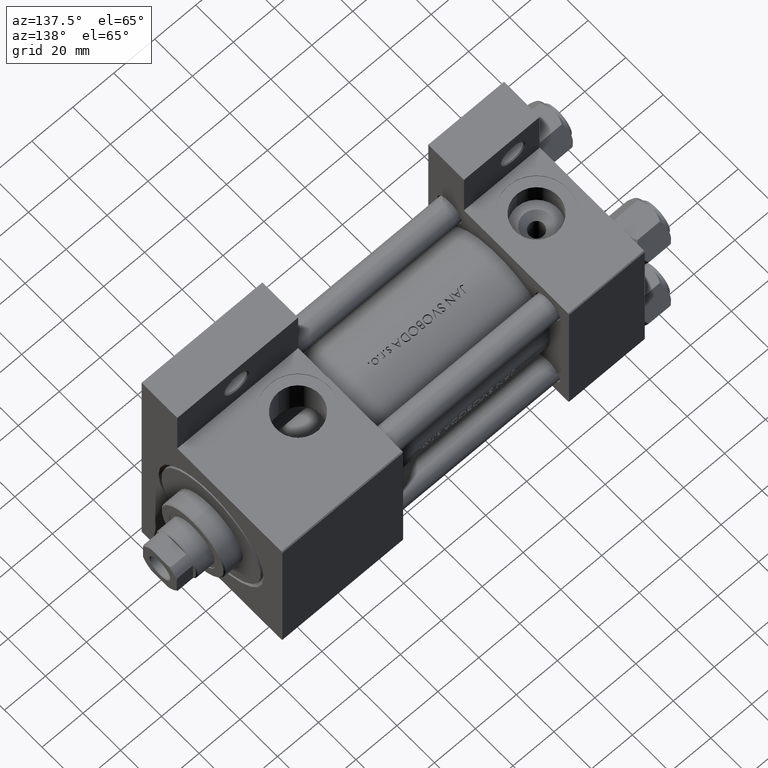
[diagram: clean part render]
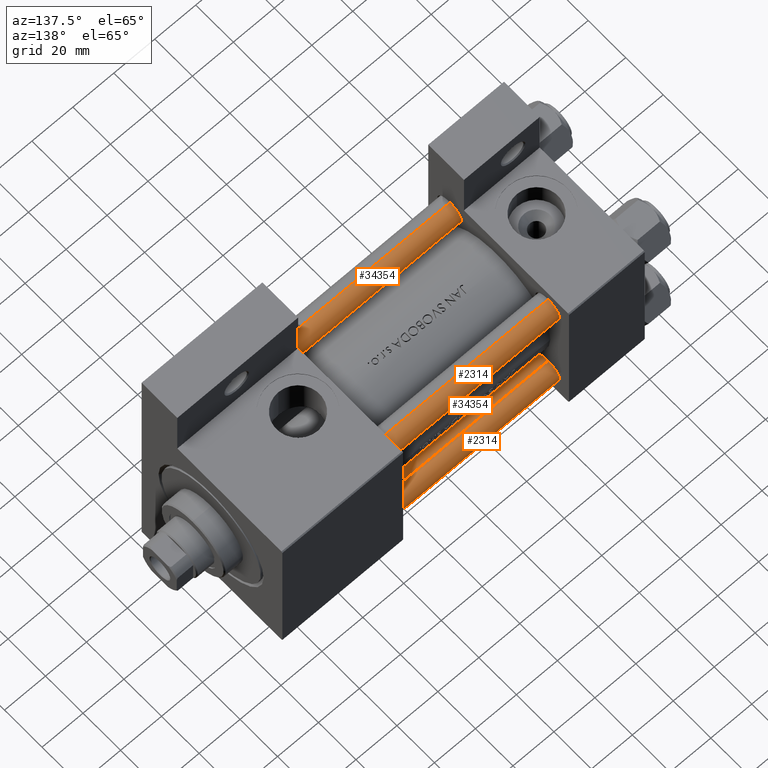
[diagram: same view with one multi-face feature highlighted, each face labeled with its STEP entity id]
A machine part, auxiliary view. The highlighted faces form ONE feature: a constant-radius fillet chain: 4 tangent blend faces with common blend radius 6 mm. The faces share edges in the B-rep.
Their STEP definitions:
[1] entity #2314 (Cylinder):
#359 = ORIENTED_EDGE ( 'NONE', *, *, #12044, .T. ) ;
#415 = DIRECTION ( 'NONE',  ( -0.000000000000000000, -0.000000000000000000, -1.000000000000000000 ) ) ;
#1256 = AXIS2_PLACEMENT_3D ( 'NONE', #48250, #40768, #23266 ) ;
#2268 = DIRECTION ( 'NONE',  ( -0.000000000000000000, -0.000000000000000000, -1.000000000000000000 ) ) ;
#2314 = ADVANCED_FACE ( 'NONE', ( #2680 ), #17866, .T. ) ;
#2680 = FACE_OUTER_BOUND ( 'NONE', #6323, .T. ) ;
#4092 = VERTEX_POINT ( 'NONE', #20098 ) ;
#5217 = CARTESIAN_POINT ( 'NONE',  ( -6.000000000000000888, 0.000000000000000000, 0.5000000000000004441 ) ) ;
#6323 = EDGE_LOOP ( 'NONE', ( #359, #31603, #44761, #8706 ) ) ;
#7171 = CARTESIAN_POINT ( 'NONE',  ( -6.000000000000000888, 0.000000000000000000, 147.0000000000000000 ) ) ;
#7822 = AXIS2_PLACEMENT_3D ( 'NONE', #21263, #41822, #29661 ) ;
#8422 = EDGE_CURVE ( 'NONE', #28622, #28889, #12631, .T. ) ;
#8706 = ORIENTED_EDGE ( 'NONE', *, *, #15880, .F. ) ;
#9428 = AXIS2_PLACEMENT_3D ( 'NONE', #45759, #24858, #32075 ) ;
#12044 = EDGE_CURVE ( 'NONE', #4092, #16332, #30894, .T. ) ;
#12631 = CIRCLE ( 'NONE', #7822, 6.000000000000000888 ) ;
#15880 = EDGE_CURVE ( 'NONE', #4092, #28889, #19090, .T. ) ;
#16332 = VERTEX_POINT ( 'NONE', #22180 ) ;
#17866 = CYLINDRICAL_SURFACE ( 'NONE', #1256, 6.000000000000000888 ) ;
#18197 = LINE ( 'NONE', #36133, #19958 ) ;
#19090 = LINE ( 'NONE', #7171, #24689 ) ;
#19958 = VECTOR ( 'NONE', #2268, 1000.000000000000000 ) ;
#20098 = CARTESIAN_POINT ( 'NONE',  ( -6.000000000000000888, 0.000000000000000000, 146.5000000000000000 ) ) ;
#21263 = CARTESIAN_POINT ( 'NONE',  ( 0.000000000000000000, 0.000000000000000000, 0.5000000000000004441 ) ) ;
#22180 = CARTESIAN_POINT ( 'NONE',  ( 6.000000000000000888, 7.347880794884120722E-16, 146.5000000000000000 ) ) ;
#23266 = DIRECTION ( 'NONE',  ( -1.000000000000000000, 0.000000000000000000, 0.000000000000000000 ) ) ;
#23969 = CARTESIAN_POINT ( 'NONE',  ( 6.000000000000000888, 7.347880794884120722E-16, 0.5000000000000004441 ) ) ;
#24689 = VECTOR ( 'NONE', #415, 1000.000000000000000 ) ;
#24858 = DIRECTION ( 'NONE',  ( 0.000000000000000000, 0.000000000000000000, -1.000000000000000000 ) ) ;
#28622 = VERTEX_POINT ( 'NONE', #23969 ) ;
#28889 = VERTEX_POINT ( 'NONE', #5217 ) ;
#29661 = DIRECTION ( 'NONE',  ( 1.000000000000000000, 0.000000000000000000, 0.000000000000000000 ) ) ;
#30894 = CIRCLE ( 'NONE', #9428, 6.000000000000000888 ) ;
#31603 = ORIENTED_EDGE ( 'NONE', *, *, #41086, .T. ) ;
#32075 = DIRECTION ( 'NONE',  ( 1.000000000000000000, 0.000000000000000000, 0.000000000000000000 ) ) ;
#36133 = CARTESIAN_POINT ( 'NONE',  ( 6.000000000000000888, 7.347880794884120722E-16, 147.0000000000000000 ) ) ;
#40768 = DIRECTION ( 'NONE',  ( -0.000000000000000000, -0.000000000000000000, -1.000000000000000000 ) ) ;
#41086 = EDGE_CURVE ( 'NONE', #16332, #28622, #18197, .T. ) ;
#41822 = DIRECTION ( 'NONE',  ( -0.000000000000000000, -0.000000000000000000, 1.000000000000000000 ) ) ;
#44761 = ORIENTED_EDGE ( 'NONE', *, *, #8422, .T. ) ;
#45759 = CARTESIAN_POINT ( 'NONE',  ( 0.000000000000000000, 0.000000000000000000, 146.5000000000000000 ) ) ;
#48250 = CARTESIAN_POINT ( 'NONE',  ( 0.000000000000000000, 0.000000000000000000, 147.0000000000000000 ) ) ;
[2] entity #34354 (Cylinder):
#415 = DIRECTION ( 'NONE',  ( -0.000000000000000000, -0.000000000000000000, -1.000000000000000000 ) ) ;
#632 = EDGE_CURVE ( 'NONE', #16332, #4092, #13168, .T. ) ;
#1714 = DIRECTION ( 'NONE',  ( 1.000000000000000000, 0.000000000000000000, 0.000000000000000000 ) ) ;
#2268 = DIRECTION ( 'NONE',  ( -0.000000000000000000, -0.000000000000000000, -1.000000000000000000 ) ) ;
#4092 = VERTEX_POINT ( 'NONE', #20098 ) ;
#5217 = CARTESIAN_POINT ( 'NONE',  ( -6.000000000000000888, 0.000000000000000000, 0.5000000000000004441 ) ) ;
#7171 = CARTESIAN_POINT ( 'NONE',  ( -6.000000000000000888, 0.000000000000000000, 147.0000000000000000 ) ) ;
#7811 = DIRECTION ( 'NONE',  ( -1.000000000000000000, 0.000000000000000000, 0.000000000000000000 ) ) ;
#9179 = EDGE_LOOP ( 'NONE', ( #47995, #10002, #47557, #30301 ) ) ;
#10002 = ORIENTED_EDGE ( 'NONE', *, *, #632, .T. ) ;
#13168 = CIRCLE ( 'NONE', #31434, 6.000000000000000888 ) ;
#14382 = DIRECTION ( 'NONE',  ( 1.000000000000000000, 0.000000000000000000, 0.000000000000000000 ) ) ;
#15880 = EDGE_CURVE ( 'NONE', #4092, #28889, #19090, .T. ) ;
#16332 = VERTEX_POINT ( 'NONE', #22180 ) ;
#18197 = LINE ( 'NONE', #36133, #19958 ) ;
#18763 = CARTESIAN_POINT ( 'NONE',  ( 0.000000000000000000, 0.000000000000000000, 147.0000000000000000 ) ) ;
#19090 = LINE ( 'NONE', #7171, #24689 ) ;
#19958 = VECTOR ( 'NONE', #2268, 1000.000000000000000 ) ;
#20098 = CARTESIAN_POINT ( 'NONE',  ( -6.000000000000000888, 0.000000000000000000, 146.5000000000000000 ) ) ;
#20489 = AXIS2_PLACEMENT_3D ( 'NONE', #37027, #33044, #14382 ) ;
#20643 = DIRECTION ( 'NONE',  ( 0.000000000000000000, 0.000000000000000000, -1.000000000000000000 ) ) ;
#21135 = CARTESIAN_POINT ( 'NONE',  ( 0.000000000000000000, 0.000000000000000000, 146.5000000000000000 ) ) ;
#22180 = CARTESIAN_POINT ( 'NONE',  ( 6.000000000000000888, 7.347880794884120722E-16, 146.5000000000000000 ) ) ;
#23969 = CARTESIAN_POINT ( 'NONE',  ( 6.000000000000000888, 7.347880794884120722E-16, 0.5000000000000004441 ) ) ;
#24689 = VECTOR ( 'NONE', #415, 1000.000000000000000 ) ;
#26265 = CYLINDRICAL_SURFACE ( 'NONE', #29999, 6.000000000000000888 ) ;
#27002 = FACE_OUTER_BOUND ( 'NONE', #9179, .T. ) ;
#28622 = VERTEX_POINT ( 'NONE', #23969 ) ;
#28889 = VERTEX_POINT ( 'NONE', #5217 ) ;
#29999 = AXIS2_PLACEMENT_3D ( 'NONE', #18763, #33951, #7811 ) ;
#30301 = ORIENTED_EDGE ( 'NONE', *, *, #30968, .T. ) ;
#30968 = EDGE_CURVE ( 'NONE', #28889, #28622, #33090, .T. ) ;
#31434 = AXIS2_PLACEMENT_3D ( 'NONE', #21135, #20643, #1714 ) ;
#33044 = DIRECTION ( 'NONE',  ( -0.000000000000000000, -0.000000000000000000, 1.000000000000000000 ) ) ;
#33090 = CIRCLE ( 'NONE', #20489, 6.000000000000000888 ) ;
#33951 = DIRECTION ( 'NONE',  ( -0.000000000000000000, -0.000000000000000000, -1.000000000000000000 ) ) ;
#34354 = ADVANCED_FACE ( 'NONE', ( #27002 ), #26265, .T. ) ;
#36133 = CARTESIAN_POINT ( 'NONE',  ( 6.000000000000000888, 7.347880794884120722E-16, 147.0000000000000000 ) ) ;
#37027 = CARTESIAN_POINT ( 'NONE',  ( 0.000000000000000000, 0.000000000000000000, 0.5000000000000004441 ) ) ;
#41086 = EDGE_CURVE ( 'NONE', #16332, #28622, #18197, .T. ) ;
#47557 = ORIENTED_EDGE ( 'NONE', *, *, #15880, .T. ) ;
#47995 = ORIENTED_EDGE ( 'NONE', *, *, #41086, .F. ) ;
[3] entity #2314 (Cylinder):
#359 = ORIENTED_EDGE ( 'NONE', *, *, #12044, .T. ) ;
#415 = DIRECTION ( 'NONE',  ( -0.000000000000000000, -0.000000000000000000, -1.000000000000000000 ) ) ;
#1256 = AXIS2_PLACEMENT_3D ( 'NONE', #48250, #40768, #23266 ) ;
#2268 = DIRECTION ( 'NONE',  ( -0.000000000000000000, -0.000000000000000000, -1.000000000000000000 ) ) ;
#2314 = ADVANCED_FACE ( 'NONE', ( #2680 ), #17866, .T. ) ;
#2680 = FACE_OUTER_BOUND ( 'NONE', #6323, .T. ) ;
#4092 = VERTEX_POINT ( 'NONE', #20098 ) ;
#5217 = CARTESIAN_POINT ( 'NONE',  ( -6.000000000000000888, 0.000000000000000000, 0.5000000000000004441 ) ) ;
#6323 = EDGE_LOOP ( 'NONE', ( #359, #31603, #44761, #8706 ) ) ;
#7171 = CARTESIAN_POINT ( 'NONE',  ( -6.000000000000000888, 0.000000000000000000, 147.0000000000000000 ) ) ;
#7822 = AXIS2_PLACEMENT_3D ( 'NONE', #21263, #41822, #29661 ) ;
#8422 = EDGE_CURVE ( 'NONE', #28622, #28889, #12631, .T. ) ;
#8706 = ORIENTED_EDGE ( 'NONE', *, *, #15880, .F. ) ;
#9428 = AXIS2_PLACEMENT_3D ( 'NONE', #45759, #24858, #32075 ) ;
#12044 = EDGE_CURVE ( 'NONE', #4092, #16332, #30894, .T. ) ;
#12631 = CIRCLE ( 'NONE', #7822, 6.000000000000000888 ) ;
#15880 = EDGE_CURVE ( 'NONE', #4092, #28889, #19090, .T. ) ;
#16332 = VERTEX_POINT ( 'NONE', #22180 ) ;
#17866 = CYLINDRICAL_SURFACE ( 'NONE', #1256, 6.000000000000000888 ) ;
#18197 = LINE ( 'NONE', #36133, #19958 ) ;
#19090 = LINE ( 'NONE', #7171, #24689 ) ;
#19958 = VECTOR ( 'NONE', #2268, 1000.000000000000000 ) ;
#20098 = CARTESIAN_POINT ( 'NONE',  ( -6.000000000000000888, 0.000000000000000000, 146.5000000000000000 ) ) ;
#21263 = CARTESIAN_POINT ( 'NONE',  ( 0.000000000000000000, 0.000000000000000000, 0.5000000000000004441 ) ) ;
#22180 = CARTESIAN_POINT ( 'NONE',  ( 6.000000000000000888, 7.347880794884120722E-16, 146.5000000000000000 ) ) ;
#23266 = DIRECTION ( 'NONE',  ( -1.000000000000000000, 0.000000000000000000, 0.000000000000000000 ) ) ;
#23969 = CARTESIAN_POINT ( 'NONE',  ( 6.000000000000000888, 7.347880794884120722E-16, 0.5000000000000004441 ) ) ;
#24689 = VECTOR ( 'NONE', #415, 1000.000000000000000 ) ;
#24858 = DIRECTION ( 'NONE',  ( 0.000000000000000000, 0.000000000000000000, -1.000000000000000000 ) ) ;
#28622 = VERTEX_POINT ( 'NONE', #23969 ) ;
#28889 = VERTEX_POINT ( 'NONE', #5217 ) ;
#29661 = DIRECTION ( 'NONE',  ( 1.000000000000000000, 0.000000000000000000, 0.000000000000000000 ) ) ;
#30894 = CIRCLE ( 'NONE', #9428, 6.000000000000000888 ) ;
#31603 = ORIENTED_EDGE ( 'NONE', *, *, #41086, .T. ) ;
#32075 = DIRECTION ( 'NONE',  ( 1.000000000000000000, 0.000000000000000000, 0.000000000000000000 ) ) ;
#36133 = CARTESIAN_POINT ( 'NONE',  ( 6.000000000000000888, 7.347880794884120722E-16, 147.0000000000000000 ) ) ;
#40768 = DIRECTION ( 'NONE',  ( -0.000000000000000000, -0.000000000000000000, -1.000000000000000000 ) ) ;
#41086 = EDGE_CURVE ( 'NONE', #16332, #28622, #18197, .T. ) ;
#41822 = DIRECTION ( 'NONE',  ( -0.000000000000000000, -0.000000000000000000, 1.000000000000000000 ) ) ;
#44761 = ORIENTED_EDGE ( 'NONE', *, *, #8422, .T. ) ;
#45759 = CARTESIAN_POINT ( 'NONE',  ( 0.000000000000000000, 0.000000000000000000, 146.5000000000000000 ) ) ;
#48250 = CARTESIAN_POINT ( 'NONE',  ( 0.000000000000000000, 0.000000000000000000, 147.0000000000000000 ) ) ;
[4] entity #34354 (Cylinder):
#415 = DIRECTION ( 'NONE',  ( -0.000000000000000000, -0.000000000000000000, -1.000000000000000000 ) ) ;
#632 = EDGE_CURVE ( 'NONE', #16332, #4092, #13168, .T. ) ;
#1714 = DIRECTION ( 'NONE',  ( 1.000000000000000000, 0.000000000000000000, 0.000000000000000000 ) ) ;
#2268 = DIRECTION ( 'NONE',  ( -0.000000000000000000, -0.000000000000000000, -1.000000000000000000 ) ) ;
#4092 = VERTEX_POINT ( 'NONE', #20098 ) ;
#5217 = CARTESIAN_POINT ( 'NONE',  ( -6.000000000000000888, 0.000000000000000000, 0.5000000000000004441 ) ) ;
#7171 = CARTESIAN_POINT ( 'NONE',  ( -6.000000000000000888, 0.000000000000000000, 147.0000000000000000 ) ) ;
#7811 = DIRECTION ( 'NONE',  ( -1.000000000000000000, 0.000000000000000000, 0.000000000000000000 ) ) ;
#9179 = EDGE_LOOP ( 'NONE', ( #47995, #10002, #47557, #30301 ) ) ;
#10002 = ORIENTED_EDGE ( 'NONE', *, *, #632, .T. ) ;
#13168 = CIRCLE ( 'NONE', #31434, 6.000000000000000888 ) ;
#14382 = DIRECTION ( 'NONE',  ( 1.000000000000000000, 0.000000000000000000, 0.000000000000000000 ) ) ;
#15880 = EDGE_CURVE ( 'NONE', #4092, #28889, #19090, .T. ) ;
#16332 = VERTEX_POINT ( 'NONE', #22180 ) ;
#18197 = LINE ( 'NONE', #36133, #19958 ) ;
#18763 = CARTESIAN_POINT ( 'NONE',  ( 0.000000000000000000, 0.000000000000000000, 147.0000000000000000 ) ) ;
#19090 = LINE ( 'NONE', #7171, #24689 ) ;
#19958 = VECTOR ( 'NONE', #2268, 1000.000000000000000 ) ;
#20098 = CARTESIAN_POINT ( 'NONE',  ( -6.000000000000000888, 0.000000000000000000, 146.5000000000000000 ) ) ;
#20489 = AXIS2_PLACEMENT_3D ( 'NONE', #37027, #33044, #14382 ) ;
#20643 = DIRECTION ( 'NONE',  ( 0.000000000000000000, 0.000000000000000000, -1.000000000000000000 ) ) ;
#21135 = CARTESIAN_POINT ( 'NONE',  ( 0.000000000000000000, 0.000000000000000000, 146.5000000000000000 ) ) ;
#22180 = CARTESIAN_POINT ( 'NONE',  ( 6.000000000000000888, 7.347880794884120722E-16, 146.5000000000000000 ) ) ;
#23969 = CARTESIAN_POINT ( 'NONE',  ( 6.000000000000000888, 7.347880794884120722E-16, 0.5000000000000004441 ) ) ;
#24689 = VECTOR ( 'NONE', #415, 1000.000000000000000 ) ;
#26265 = CYLINDRICAL_SURFACE ( 'NONE', #29999, 6.000000000000000888 ) ;
#27002 = FACE_OUTER_BOUND ( 'NONE', #9179, .T. ) ;
#28622 = VERTEX_POINT ( 'NONE', #23969 ) ;
#28889 = VERTEX_POINT ( 'NONE', #5217 ) ;
#29999 = AXIS2_PLACEMENT_3D ( 'NONE', #18763, #33951, #7811 ) ;
#30301 = ORIENTED_EDGE ( 'NONE', *, *, #30968, .T. ) ;
#30968 = EDGE_CURVE ( 'NONE', #28889, #28622, #33090, .T. ) ;
#31434 = AXIS2_PLACEMENT_3D ( 'NONE', #21135, #20643, #1714 ) ;
#33044 = DIRECTION ( 'NONE',  ( -0.000000000000000000, -0.000000000000000000, 1.000000000000000000 ) ) ;
#33090 = CIRCLE ( 'NONE', #20489, 6.000000000000000888 ) ;
#33951 = DIRECTION ( 'NONE',  ( -0.000000000000000000, -0.000000000000000000, -1.000000000000000000 ) ) ;
#34354 = ADVANCED_FACE ( 'NONE', ( #27002 ), #26265, .T. ) ;
#36133 = CARTESIAN_POINT ( 'NONE',  ( 6.000000000000000888, 7.347880794884120722E-16, 147.0000000000000000 ) ) ;
#37027 = CARTESIAN_POINT ( 'NONE',  ( 0.000000000000000000, 0.000000000000000000, 0.5000000000000004441 ) ) ;
#41086 = EDGE_CURVE ( 'NONE', #16332, #28622, #18197, .T. ) ;
#47557 = ORIENTED_EDGE ( 'NONE', *, *, #15880, .T. ) ;
#47995 = ORIENTED_EDGE ( 'NONE', *, *, #41086, .F. ) ;